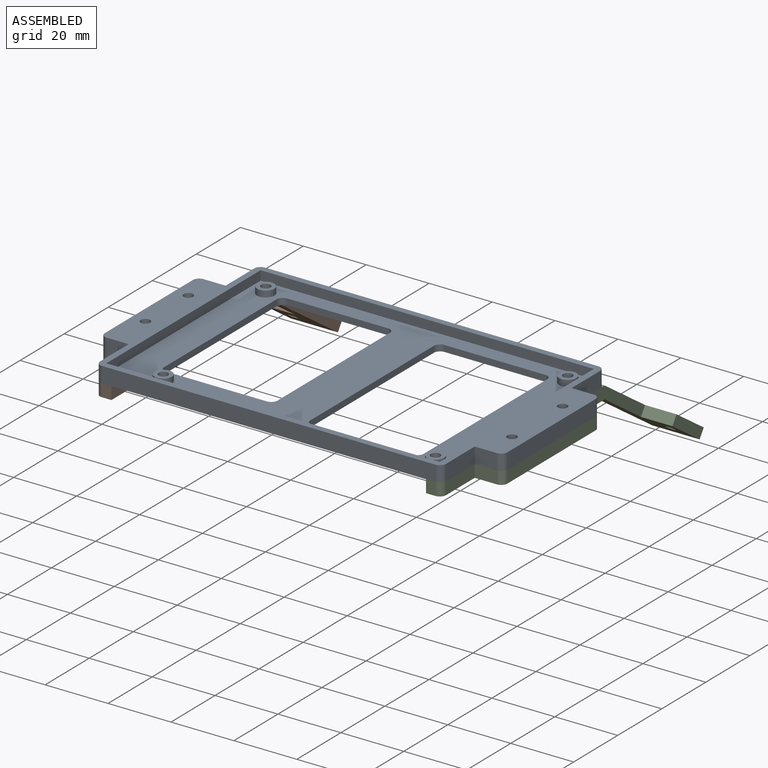
[diagram: assembled view]
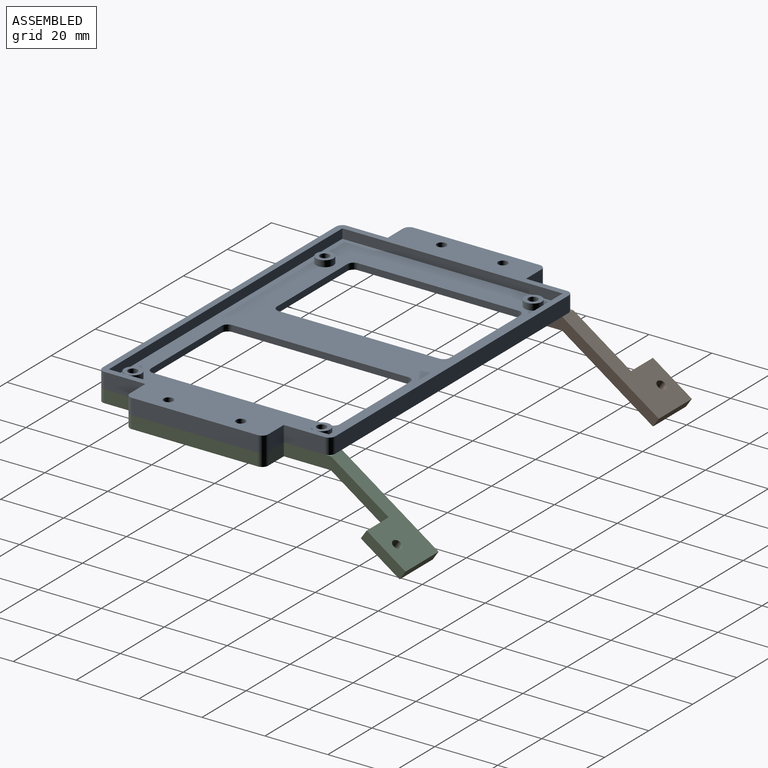
[diagram: assembled view, second angle]
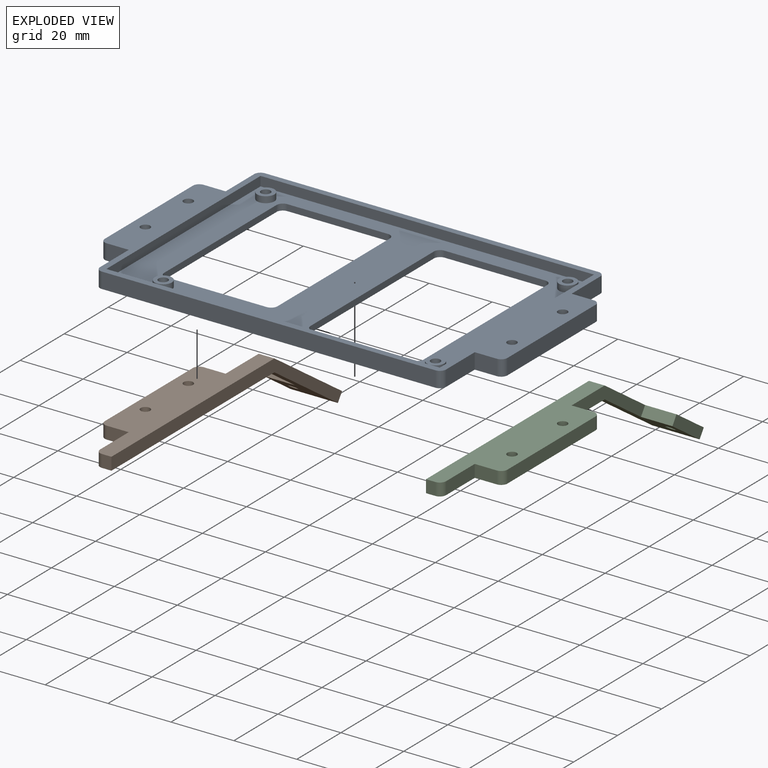
[diagram: exploded view]
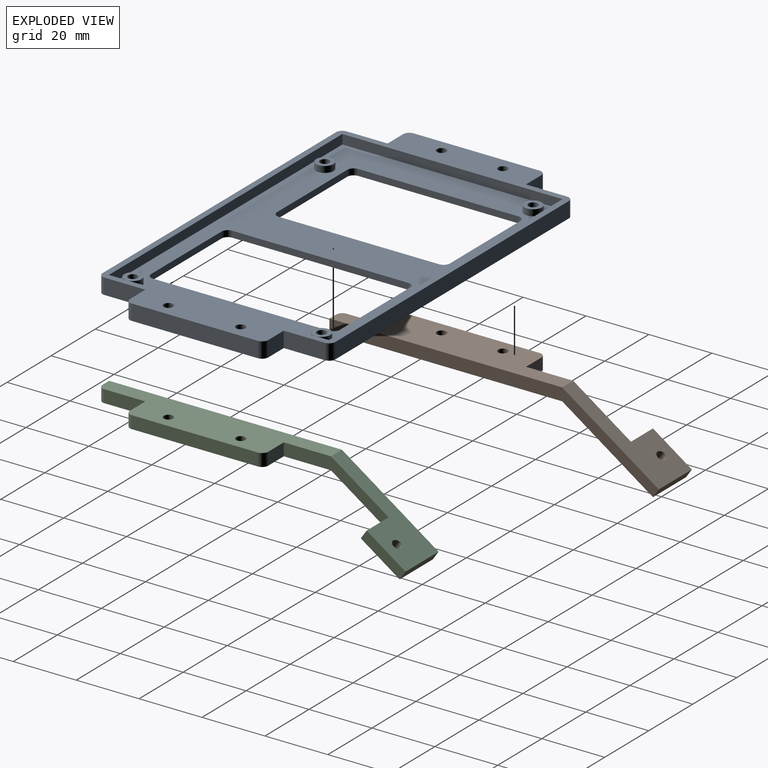
[diagram: exploded view, second angle]
ASSEMBLY  parts=3 mates=2
PART A: 59 faces, bbox 128x74x5 mm
  f0: plane 106x70mm, normal (0,0,1), area 3191.8mm2, adj f2,f5,f8,f11,f14,f15,f16,f17
  f1: plane 128x74mm, normal (0,0,-1), area 4735.5mm2, adj f3,f6,f9,f12,f18,f19,f20,f21
  f2: cylinder r=2.75mm len=5.5mm, axis (0,0,-1), area 34.6mm2, adj f0,f4
  f3: cylinder r=1.5mm len=4mm, axis (0,0,-1), area 37.7mm2, adj f1,f4
  f4: plane 5.5x5.5mm, normal (0,0,1), area 16.7mm2, adj f2,f3
  f5: cylinder r=2.75mm len=5.5mm, axis (0,0,-1), area 34.6mm2, adj f0,f7
  f6: cylinder r=1.5mm len=4mm, axis (0,0,-1), area 37.7mm2, adj f1,f7
  f7: plane 5.5x5.5mm, normal (0,0,1), area 16.7mm2, adj f5,f6
  f8: cylinder r=2.75mm len=5.5mm, axis (0,0,-1), area 34.6mm2, adj f0,f10
  f9: cylinder r=1.5mm len=4mm, axis (0,0,-1), area 37.7mm2, adj f1,f10
  f10: plane 5.5x5.5mm, normal (0,0,1), area 16.7mm2, adj f8,f9
  f11: cylinder r=2.75mm len=5.5mm, axis (0,0,-1), area 34.6mm2, adj f0,f13
  f12: cylinder r=1.5mm len=4mm, axis (0,0,-1), area 37.7mm2, adj f1,f13
  f13: plane 5.5x5.5mm, normal (0,0,1), area 16.7mm2, adj f11,f12
  f14: plane 70x3mm, normal (1,0,0), area 210mm2, adj f0,f15,f17,f38
  f15: plane 106x3mm, normal (0,1,0), area 318mm2, adj f0,f14,f16,f38
  f16: plane 70x3mm, normal (-1,0,0), area 210mm2, adj f0,f15,f17,f38
  f17: plane 106x3mm, normal (0,-1,0), area 318mm2, adj f0,f14,f16,f38
  f18: plane 7x5mm, normal (0,-1,0), area 35mm2, adj f1,f19,f38,f40
  f19: plane 13x5mm, normal (-1,0,0), area 65mm2, adj f1,f18,f20,f38
  f20: cylinder r=2mm len=5mm, axis (0,0,-1), area 15.7mm2, adj f1,f19,f21,f38
  f21: plane 106x5mm, normal (0,-1,0), area 530mm2, adj f1,f20,f22,f38
  f22: cylinder r=2mm len=5mm, axis (0,0,-1), area 15.7mm2, adj f1,f21,f23,f38
  f23: plane 13x5mm, normal (1,0,0), area 65mm2, adj f1,f22,f24,f38
  f24: plane 7x5mm, normal (0,-1,0), area 35mm2, adj f1,f23,f38,f41
  f25: plane 40x5mm, normal (1,0,0), area 200mm2, adj f1,f38,f41,f42
  f26: plane 7x5mm, normal (0,1,0), area 35mm2, adj f1,f27,f38,f42
  f27: plane 13x5mm, normal (1,0,0), area 65mm2, adj f1,f26,f28,f38
  f28: cylinder r=2mm len=5mm, axis (0,0,-1), area 15.7mm2, adj f1,f27,f29,f38
  f29: plane 106x5mm, normal (0,1,0), area 530mm2, adj f1,f28,f30,f38
  f30: cylinder r=2mm len=5mm, axis (0,0,-1), area 15.7mm2, adj f1,f29,f31,f38
  f31: plane 13x5mm, normal (-1,0,0), area 65mm2, adj f1,f30,f32,f38
  f32: plane 7x5mm, normal (0,1,0), area 35mm2, adj f1,f31,f38,f39
  f33: cylinder r=1.5mm len=5mm, axis (0,0,-1), area 47.1mm2, adj f1,f38
  f34: plane 40x5mm, normal (-1,0,0), area 200mm2, adj f1,f38,f39,f40
  f35: cylinder r=1.5mm len=5mm, axis (0,0,-1), area 47.1mm2, adj f1,f38
  f36: cylinder r=1.5mm len=5mm, axis (0,0,-1), area 47.1mm2, adj f1,f38
  f37: cylinder r=1.5mm len=5mm, axis (0,0,-1), area 47.1mm2, adj f1,f38
  f38: plane 128x74mm, normal (0,0,1), area 1476.9mm2, adj f14,f15,f16,f17,f18,f19,f20,f21
  f39: cylinder r=2mm len=5mm, axis (0,0,-1), area 15.7mm2, adj f1,f32,f34,f38
  f40: cylinder r=2mm len=5mm, axis (0,0,1), area 15.7mm2, adj f1,f18,f34,f38
  f41: cylinder r=2mm len=5mm, axis (0,0,1), area 15.7mm2, adj f1,f24,f25,f38
  f42: cylinder r=2mm len=5mm, axis (0,0,-1), area 15.7mm2, adj f1,f25,f26,f38
  f43: cylinder r=2mm len=2mm, axis (0,0,1), area 6.3mm2, adj f0,f1,f44,f50
  f44: plane 32x2mm, normal (0,-1,0), area 64mm2, adj f0,f1,f43,f45
  f45: cylinder r=2mm len=2mm, axis (0,0,1), area 6.3mm2, adj f0,f1,f44,f46
  f46: plane 51x2mm, normal (1,0,0), area 102mm2, adj f0,f1,f45,f47
  f47: cylinder r=2mm len=2mm, axis (0,0,1), area 6.3mm2, adj f0,f1,f46,f48
  f48: plane 32x2mm, normal (0,1,0), area 64mm2, adj f0,f1,f47,f49
  f49: cylinder r=2mm len=2mm, axis (0,0,1), area 6.3mm2, adj f0,f1,f48,f50
  f50: plane 51x2mm, normal (-1,0,0), area 102mm2, adj f0,f1,f43,f49
  f51: cylinder r=2mm len=2mm, axis (0,0,1), area 6.3mm2, adj f0,f1,f52,f58
  f52: plane 32x2mm, normal (0,-1,0), area 64mm2, adj f0,f1,f51,f53
  f53: cylinder r=2mm len=2mm, axis (0,0,1), area 6.3mm2, adj f0,f1,f52,f54
  f54: plane 56x2mm, normal (1,0,0), area 112mm2, adj f0,f1,f53,f55
  f55: cylinder r=2mm len=2mm, axis (0,0,1), area 6.3mm2, adj f0,f1,f54,f56
  f56: plane 32x2mm, normal (0,1,0), area 64mm2, adj f0,f1,f55,f57
  f57: cylinder r=2mm len=2mm, axis (0,0,1), area 6.3mm2, adj f0,f1,f56,f58
  f58: plane 56x2mm, normal (-1,0,0), area 112mm2, adj f0,f1,f51,f57
PART B: 21 faces, bbox 15x104.7x23.8 mm
  f0: plane 33.35x15.33mm, normal (-1,0,0), area 129.7mm2, adj f6,f7,f13,f14,f16,f17,f18
  f1: plane 7x4mm, normal (0,-1,0), area 28mm2, adj f2,f12,f13,f14
  f2: plane 13x4mm, normal (-1,0,0), area 52mm2, adj f1,f3,f13,f14
  f3: cylinder r=2mm len=4mm, axis (0,0,-1), area 12.6mm2, adj f2,f4,f13,f14
  f4: plane 4x3mm, normal (0,-1,0), area 12mm2, adj f3,f5,f13,f14
  f5: plane 104.71x23.82mm, normal (1,0,0), area 415.1mm2, adj f4,f6,f13,f14,f15,f16,f17
  f6: plane 5x0mm, normal (0,1,0), area 0mm2, adj f0,f5,f13,f16
  f7: plane 7x4mm, normal (0,1,0), area 28mm2, adj f0,f8,f13,f14
  f8: cylinder r=2mm len=4mm, axis (0,0,-1), area 12.6mm2, adj f7,f9,f13,f14
  f9: plane 40x4mm, normal (-1,0,0), area 160mm2, adj f8,f12,f13,f14
  f10: cylinder r=1.5mm len=4mm, axis (0,0,-1), area 37.7mm2, adj f13,f14
  f11: cylinder r=1.5mm len=4mm, axis (0,0,-1), area 37.7mm2, adj f13,f14
  f12: cylinder r=2mm len=4mm, axis (0,0,-1), area 12.6mm2, adj f1,f9,f13,f14
  f13: plane 74x14mm, normal (0,0,1), area 749.3mm2, adj f0,f1,f2,f3,f4,f5,f6,f7
  f14: plane 74x14mm, normal (0,0,-1), area 749.3mm2, adj f0,f1,f2,f3,f4,f5,f7,f8
  f15: plane 15x2.72mm, normal (0,0.82,-0.57), area 49.4mm2, adj f5,f16,f17,f19
  f16: plane 30.71x21.11mm, normal (0,0.57,0.82), area 329.3mm2, adj f0,f5,f6,f15,f18,f19,f20
  f17: plane 28.84x19.82mm, normal (0,-0.57,-0.82), area 317.9mm2, adj f0,f5,f14,f15,f18,f19,f20
  f18: plane 10x2.72mm, normal (0,-0.82,0.57), area 33mm2, adj f0,f16,f17,f19
  f19: plane 14.23x11.21mm, normal (-1,0,0), area 49.4mm2, adj f15,f16,f17,f18
  f20: cylinder r=1.5mm len=4.42mm, axis (0,0.57,0.82), area 31.1mm2, adj f16,f17
PART C: 21 faces, bbox 15x104.7x23.8 mm
  f0: plane 33.35x15.33mm, normal (1,0,0), area 129.7mm2, adj f6,f7,f12,f13,f15,f16,f17
  f1: plane 7x4mm, normal (0,-1,0), area 28mm2, adj f2,f11,f12,f13
  f2: plane 13x4mm, normal (1,0,0), area 52mm2, adj f1,f3,f12,f13
  f3: cylinder r=2mm len=4mm, axis (0,0,-1), area 12.6mm2, adj f2,f4,f12,f13
  f4: plane 4x3mm, normal (0,-1,0), area 12mm2, adj f3,f5,f12,f13
  f5: plane 104.71x23.82mm, normal (-1,0,0), area 415.1mm2, adj f4,f6,f12,f13,f14,f15,f16
  f6: plane 5x0mm, normal (0,1,0), area 0mm2, adj f0,f5,f12,f15
  f7: plane 7x4mm, normal (0,1,0), area 28mm2, adj f0,f8,f12,f13
  f8: cylinder r=2mm len=4mm, axis (0,0,-1), area 12.6mm2, adj f7,f9,f12,f13
  f9: plane 40x4mm, normal (1,0,0), area 160mm2, adj f8,f11,f12,f13
  f10: cylinder r=1.5mm len=4mm, axis (0,0,-1), area 37.7mm2, adj f12,f13
  f11: cylinder r=2mm len=4mm, axis (0,0,-1), area 12.6mm2, adj f1,f9,f12,f13
  f12: plane 74x14mm, normal (0,0,1), area 749.3mm2, adj f0,f1,f2,f3,f4,f5,f6,f7
  f13: plane 74x14mm, normal (0,0,-1), area 749.3mm2, adj f0,f1,f2,f3,f4,f5,f7,f8
  f14: plane 15x2.72mm, normal (0,0.82,-0.57), area 49.4mm2, adj f5,f15,f16,f18
  f15: plane 30.71x21.11mm, normal (0,0.57,0.82), area 329.3mm2, adj f0,f5,f6,f14,f17,f18,f19
  f16: plane 28.84x19.82mm, normal (0,-0.57,-0.82), area 317.9mm2, adj f0,f5,f13,f14,f17,f18,f19
  f17: plane 10x2.72mm, normal (0,-0.82,0.57), area 33mm2, adj f0,f15,f16,f18
  f18: plane 14.23x11.21mm, normal (1,0,0), area 49.4mm2, adj f14,f15,f16,f17
  f19: cylinder r=1.5mm len=4.42mm, axis (0,0.57,0.82), area 31.1mm2, adj f15,f16
  f20: cylinder r=1.5mm len=4mm, axis (0,0,1), area 37.7mm2, adj f12,f13
PLACE A t=(-3.78,-26.73,-35.52)mm
PLACE B t=(-59.02,-26.33,-39.52)mm
PLACE C t=(40.98,-26.33,-39.52)mm
MATE fastened C.f10 <-> A.f37  axis (0,0,1) through (55.48,-12.83,-35.52)mm
MATE fastened B.f10 <-> A.f35  axis (0,0,1) through (-63.52,-12.83,-35.52)mm
